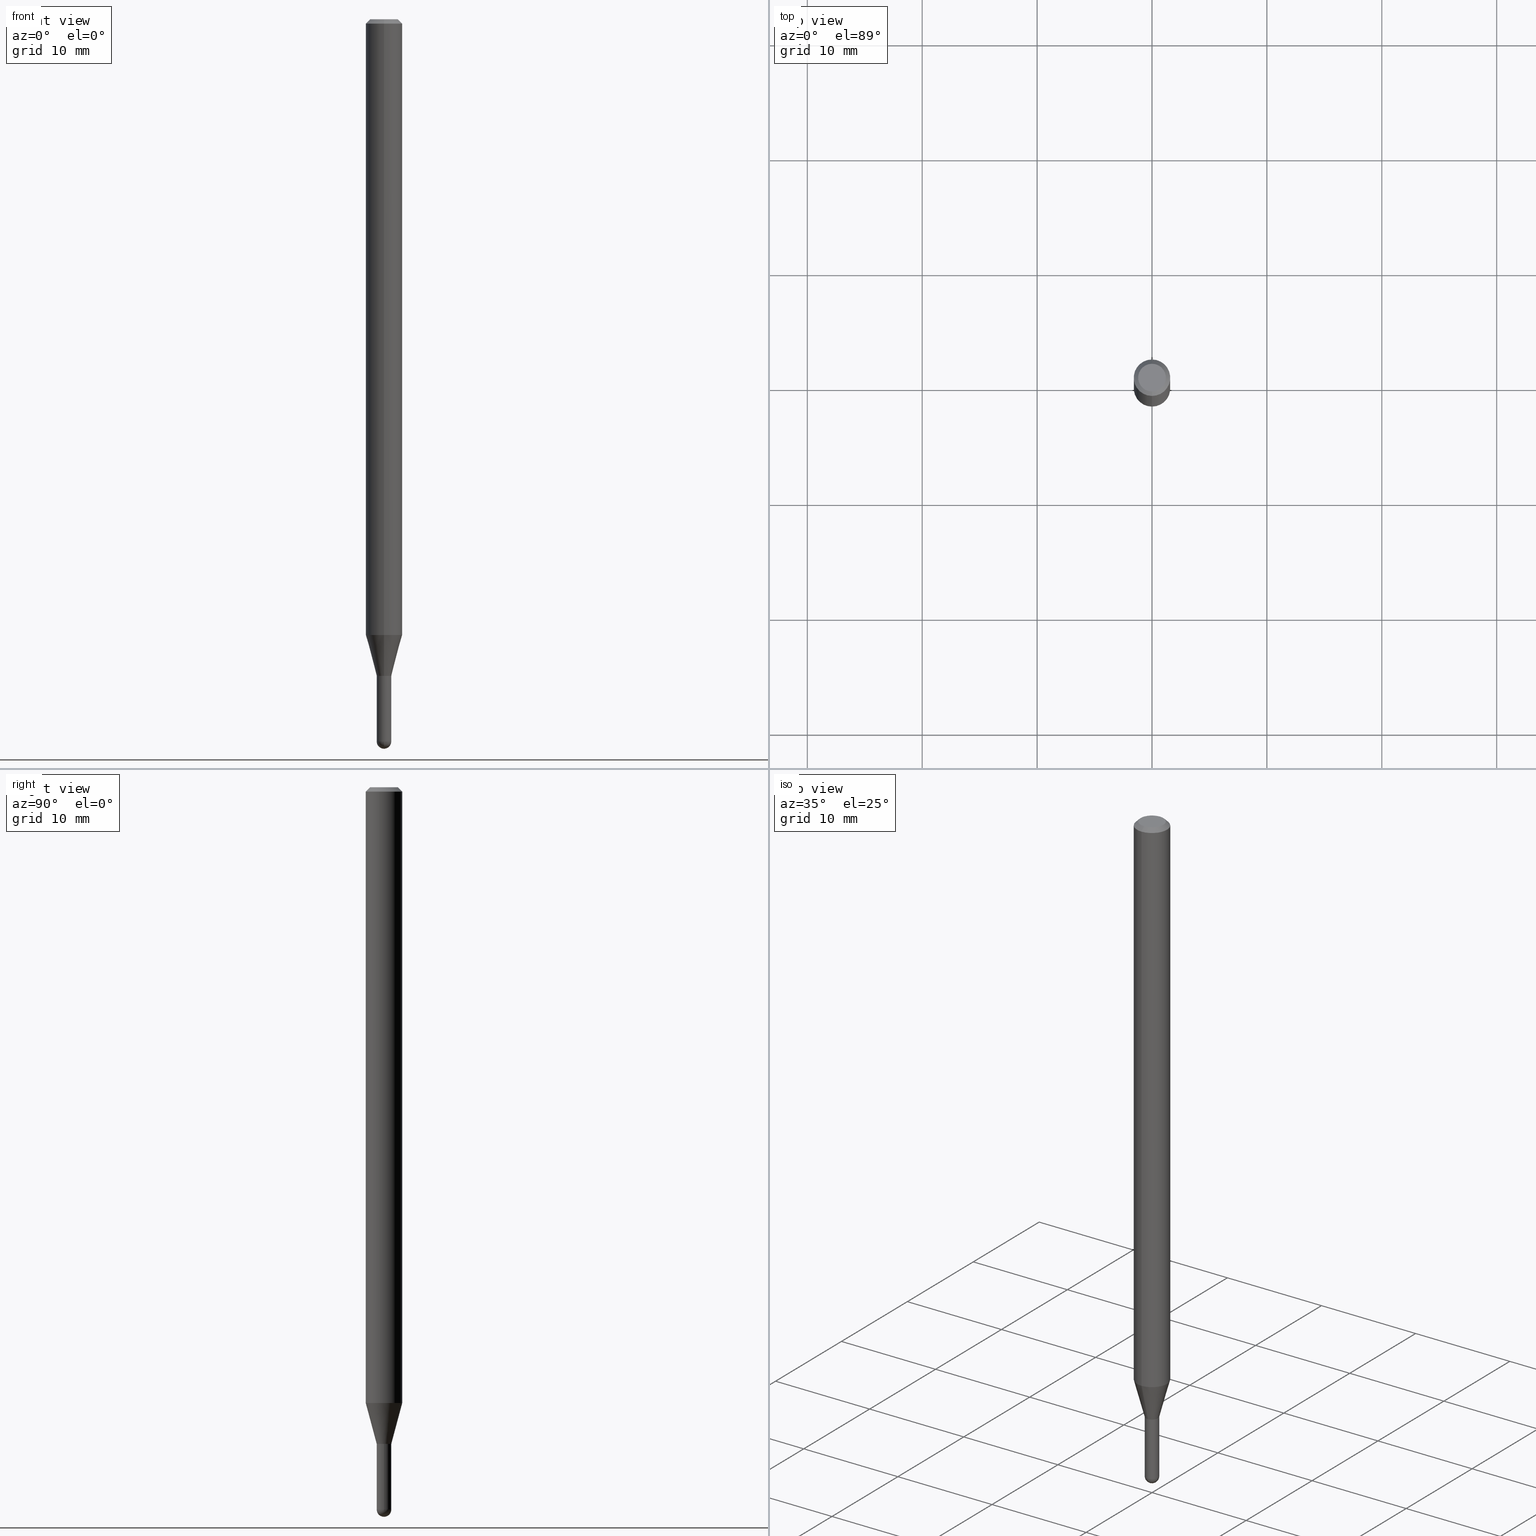
[diagram: canonical four-view strip — front | top / right | iso, engineering-drawing reading convention]
A machine part, canonical four-view strip (front | top / right | iso — engineering-drawing reading convention). The complete STEP part file that produces these views, byte-faithful:
ISO-10303-21;
HEADER;
FILE_DESCRIPTION (( 'STEP AP203' ),
    '1' );
FILE_NAME ('04464.STEP',
    '2024-03-08T19:47:28',
    ( '' ),
    ( '' ),
    'SwSTEP 2.0',
    'SolidWorks 2023',
    '' );
FILE_SCHEMA (( 'CONFIG_CONTROL_DESIGN' ));
ENDSEC;

DATA;
#1 = VECTOR ( 'NONE', #400, 39.37007874015748143 ) ;
#2 = CALENDAR_DATE ( 2024, 8, 3 ) ;
#3 = DIRECTION ( 'NONE',  ( -6.982962677686265922E-15, -1.000000000000000000, 3.491528062561427920E-15 ) ) ;
#4 = MECHANICAL_CONTEXT ( 'NONE', #263, 'mechanical' ) ;
#5 = CARTESIAN_POINT ( 'NONE',  ( -1.745740669421030499E-16, -0.02500000000000805744, -2.250000000000000000 ) ) ;
#6 = ADVANCED_FACE ( 'NONE', ( #460 ), #337, .T. ) ;
#7 = DATE_TIME_ROLE ( 'classification_date' ) ;
#8 = PLANE ( 'NONE',  #132 ) ;
#9 = CARTESIAN_POINT ( 'NONE',  ( -3.773273898774340269E-16, -0.04749999999999999362, 1.003495682958900233E-16 ) ) ;
#10 = EDGE_CURVE ( 'NONE', #466, #347, #117, .T. ) ;
#11 = DIRECTION ( 'NONE',  ( -1.000000000000000000, 7.105427357601001070E-15, -4.926315508542082329E-29 ) ) ;
#12 = AXIS2_PLACEMENT_3D ( 'NONE', #264, #455, #28 ) ;
#13 = AXIS2_PLACEMENT_3D ( 'NONE', #96, #486, #91 ) ;
#14 = ORIENTED_EDGE ( 'NONE', *, *, #369, .T. ) ;
#15 = CARTESIAN_POINT ( 'NONE',  ( 3.668154268780582042E-31, -5.237292093842164733E-17, -0.01500000000000006710 ) ) ;
#16 = ORIENTED_EDGE ( 'NONE', *, *, #459, .F. ) ;
#17 = PRODUCT ( '04464', '04464', '', ( #4 ) ) ;
#18 = DIRECTION ( 'NONE',  ( -2.445436179187043706E-29, 3.491528062561427920E-15, 1.000000000000000000 ) ) ;
#19 = CIRCLE ( 'NONE', #86, 0.02500000000000020262 ) ;
#20 = VERTEX_POINT ( 'NONE', #379 ) ;
#21 = DIRECTION ( 'NONE',  ( 1.000000000000000000, -6.982962677686254878E-15, 0.000000000000000000 ) ) ;
#22 = EDGE_LOOP ( 'NONE', ( #290, #168 ) ) ;
#23 = ADVANCED_FACE ( 'NONE', ( #376 ), #70, .F. ) ;
#24 = VECTOR ( 'NONE', #344, 39.37007874015748143 ) ;
#25 = LINE ( 'NONE', #98, #390 ) ;
#26 = CARTESIAN_POINT ( 'NONE',  ( 0.000000000000000000, 0.000000000000000000, 0.000000000000000000 ) ) ;
#27 = ADVANCED_FACE ( 'NONE', ( #218 ), #340, .F. ) ;
#28 = DIRECTION ( 'NONE',  ( -6.982962677686265922E-15, -1.000000000000000000, 0.000000000000000000 ) ) ;
#29 = ORIENTED_EDGE ( 'NONE', *, *, #353, .F. ) ;
#30 = CIRCLE ( 'NONE', #483, 0.02500000000000000486 ) ;
#31 = CARTESIAN_POINT ( 'NONE',  ( 4.440892098501139907E-16, 0.06249999999999261702, -2.110048094716172606 ) ) ;
#32 = ORIENTED_EDGE ( 'NONE', *, *, #201, .F. ) ;
#33 = DIRECTION ( 'NONE',  ( -2.445436179187043706E-29, 3.491528062561427920E-15, 1.000000000000000000 ) ) ;
#34 = DIRECTION ( 'NONE',  ( -2.445436179187043706E-29, 3.491528062561427920E-15, 1.000000000000000000 ) ) ;
#35 = DIRECTION ( 'NONE',  ( -2.445468806185136877E-29, 3.491481338843145188E-15, 1.000000000000000000 ) ) ;
#36 = CC_DESIGN_DATE_AND_TIME_ASSIGNMENT ( #389, #7, ( #121 ) ) ;
#37 = ORIENTED_EDGE ( 'NONE', *, *, #309, .F. ) ;
#38 = CALENDAR_DATE ( 2024, 8, 3 ) ;
#39 = DIRECTION ( 'NONE',  ( 5.024295867788169675E-15, 0.7071067811865651143, 0.7071067811865299202 ) ) ;
#40 = DATE_AND_TIME ( #272, #110 ) ;
#41 = ORGANIZATION ( 'UNSPECIFIED', 'UNSPECIFIED', '' ) ;
#42 = CARTESIAN_POINT ( 'NONE',  ( 1.776356839400808436E-16, 0.02499999999999225758, -2.249500000000000277 ) ) ;
#43 = DIRECTION ( 'NONE',  ( -4.851104656540964275E-15, -0.7071067811865500152, -0.7071067811865450192 ) ) ;
#44 = COORDINATED_UNIVERSAL_TIME_OFFSET ( 5, 0, .BEHIND. ) ;
#45 = CC_DESIGN_DATE_AND_TIME_ASSIGNMENT ( #158, #356, ( #221 ) ) ;
#46 = CARTESIAN_POINT ( 'NONE',  ( -1.745740669421030499E-16, -0.02500000000000805744, -2.250000000000000000 ) ) ;
#47 = SECURITY_CLASSIFICATION_LEVEL ( 'unclassified' ) ;
#48 = LINE ( 'NONE', #233, #398 ) ;
#49 = LOCAL_TIME ( 14, 47, 28.00000000000000000, #237 ) ;
#50 = DIRECTION ( 'NONE',  ( 6.982962677686265922E-15, 1.000000000000000000, -3.483106191921935554E-15 ) ) ;
#51 = CC_DESIGN_PERSON_AND_ORGANIZATION_ASSIGNMENT ( #318, #114, ( #221 ) ) ;
#52 = AXIS2_PLACEMENT_3D ( 'NONE', #412, #57, #241 ) ;
#53 = DIRECTION ( 'NONE',  ( 2.445436179187043706E-29, -3.491528062561427920E-15, -1.000000000000000000 ) ) ;
#54 = CIRCLE ( 'NONE', #262, 0.02499999999999993894 ) ;
#55 = ORIENTED_EDGE ( 'NONE', *, *, #216, .T. ) ;
#56 = FACE_OUTER_BOUND ( 'NONE', #171, .T. ) ;
#57 = DIRECTION ( 'NONE',  ( -2.445468806185136597E-29, 3.491481338843145583E-15, 1.000000000000000000 ) ) ;
#58 = ORIENTED_EDGE ( 'NONE', *, *, #467, .F. ) ;
#59 = CARTESIAN_POINT ( 'NONE',  ( 1.745740669422116662E-16, 0.02499999999999214656, -2.250000000000000000 ) ) ;
#60 = EDGE_CURVE ( 'NONE', #413, #188, #449, .T. ) ;
#61 = EDGE_LOOP ( 'NONE', ( #247, #225, #180, #131 ) ) ;
#62 = DIRECTION ( 'NONE',  ( -6.982962677686265922E-15, -1.000000000000000000, 3.483106191921935554E-15 ) ) ;
#63 = VERTEX_POINT ( 'NONE', #67 ) ;
#64 = DIRECTION ( 'NONE',  ( -2.445436179187043706E-29, 3.491528062561427920E-15, 1.000000000000000000 ) ) ;
#65 = DIRECTION ( 'NONE',  ( -2.445436179187043706E-29, 3.491528062561427920E-15, 1.000000000000000000 ) ) ;
#66 = CARTESIAN_POINT ( 'NONE',  ( 0.02500000000000000486, -1.745740669421567171E-16, 1.219044193948984299E-30 ) ) ;
#67 = CARTESIAN_POINT ( 'NONE',  ( -1.745740669421036415E-16, -0.02500000000000813724, -2.249500000000000277 ) ) ;
#68 = AXIS2_PLACEMENT_3D ( 'NONE', #172, #93, #445 ) ;
#69 = DIRECTION ( 'NONE',  ( -2.445468806185136597E-29, 3.491481338843145583E-15, 1.000000000000000000 ) ) ;
#70 = CYLINDRICAL_SURFACE ( 'NONE', #152, 0.02500000000000020262 ) ;
#71 = LOCAL_TIME ( 14, 47, 28.00000000000000000, #358 ) ;
#72 = AXIS2_PLACEMENT_3D ( 'NONE', #360, #18, #334 ) ;
#73 = ADVANCED_FACE ( 'NONE', ( #428 ), #8, .F. ) ;
#74 = ORIENTED_EDGE ( 'NONE', *, *, #442, .T. ) ;
#75 = APPROVAL_DATE_TIME ( #435, #243 ) ;
#76 = DIRECTION ( 'NONE',  ( -6.982962677686265922E-15, -1.000000000000000000, 0.000000000000000000 ) ) ;
#77 = CONICAL_SURFACE ( 'NONE', #331, 0.02500000000000020262, 0.2617993877991574569 ) ;
#78 = PERSON_AND_ORGANIZATION_ROLE ( 'classification_officer' ) ;
#79 = CYLINDRICAL_SURFACE ( 'NONE', #271, 0.06250000000000000000 ) ;
#80 = VECTOR ( 'NONE', #64, 39.37007874015748143 ) ;
#81 = CC_DESIGN_APPROVAL ( #338, ( #221 ) ) ;
#82 = DIRECTION ( 'NONE',  ( -6.982962677686265922E-15, -1.000000000000000000, 4.370956789862821150E-15 ) ) ;
#83 = DATE_AND_TIME ( #480, #138 ) ;
#84 = DIRECTION ( 'NONE',  ( -2.445436179187043706E-29, 3.491528062561427920E-15, 1.000000000000000000 ) ) ;
#85 = AXIS2_PLACEMENT_3D ( 'NONE', #267, #430, #76 ) ;
#86 = AXIS2_PLACEMENT_3D ( 'NONE', #452, #170, #246 ) ;
#87 = CARTESIAN_POINT ( 'NONE',  ( -4.364351673553916201E-16, -0.06250000000000000000, 2.182205039100892450E-16 ) ) ;
#88 = CARTESIAN_POINT ( 'NONE',  ( -4.364351673553401962E-16, -0.06250000000000738298, -2.110048094716172162 ) ) ;
#89 = FACE_OUTER_BOUND ( 'NONE', #140, .T. ) ;
#90 = ORIENTED_EDGE ( 'NONE', *, *, #159, .F. ) ;
#91 = DIRECTION ( 'NONE',  ( 6.982962677686266711E-15, 1.000000000000000000, 0.000000000000000000 ) ) ;
#92 = ORIENTED_EDGE ( 'NONE', *, *, #482, .F. ) ;
#93 = DIRECTION ( 'NONE',  ( -1.000000000000000000, 6.982962677686266711E-15, -4.883557194083112901E-29 ) ) ;
#94 = VERTEX_POINT ( 'NONE', #42 ) ;
#95 = EDGE_CURVE ( 'NONE', #409, #293, #48, .T. ) ;
#96 = CARTESIAN_POINT ( 'NONE',  ( 6.050397379585265558E-29, -8.644477930634654356E-15, -2.475000000000000089 ) ) ;
#97 = ORIENTED_EDGE ( 'NONE', *, *, #141, .T. ) ;
#98 = CARTESIAN_POINT ( 'NONE',  ( -0.02500000000000000486, 1.776356839400250810E-16, -1.229733772563726656E-30 ) ) ;
#99 = ORIENTED_EDGE ( 'NONE', *, *, #95, .F. ) ;
#100 = DIRECTION ( 'NONE',  ( -2.445436179187043706E-29, 3.491528062561427920E-15, 1.000000000000000000 ) ) ;
#101 = CARTESIAN_POINT ( 'NONE',  ( 5.502304813916557343E-29, -7.855833012397078448E-15, -2.250000000000000000 ) ) ;
#102 = EDGE_CURVE ( 'NONE', #209, #382, #312, .T. ) ;
#103 = DIRECTION ( 'NONE',  ( -6.982962677686266711E-15, -1.000000000000000000, 3.491528062561427920E-15 ) ) ;
#104 = CARTESIAN_POINT ( 'NONE',  ( 5.501008685081254812E-29, -7.854192376731932580E-15, -2.249500000000000277 ) ) ;
#105 = ORIENTED_EDGE ( 'NONE', *, *, #309, .T. ) ;
#106 = APPLICATION_CONTEXT ( 'configuration controlled 3d designs of mechanical parts and assemblies' ) ;
#107 = CLOSED_SHELL ( 'NONE', ( #411, #256, #316, #401, #270 ) ) ;
#108 = DIMENSIONAL_EXPONENTS ( 1.000000000000000000, 0.000000000000000000, 0.000000000000000000, 0.000000000000000000, 0.000000000000000000, 0.000000000000000000, 0.000000000000000000 ) ;
#109 = ORIENTED_EDGE ( 'NONE', *, *, #120, .F. ) ;
#110 = LOCAL_TIME ( 14, 47, 28.00000000000000000, #44 ) ;
#111 = ADVANCED_FACE ( 'NONE', ( #277 ), #79, .T. ) ;
#112 = APPROVAL_DATE_TIME ( #40, #157 ) ;
#113 = ORIENTED_EDGE ( 'NONE', *, *, #135, .F. ) ;
#114 = PERSON_AND_ORGANIZATION_ROLE ( 'creator' ) ;
#115 = FACE_OUTER_BOUND ( 'NONE', #22, .T. ) ;
#116 = EDGE_CURVE ( 'NONE', #406, #472, #219, .T. ) ;
#117 = CIRCLE ( 'NONE', #228, 0.02500000000000000139 ) ;
#118 = DIRECTION ( 'NONE',  ( 1.000000000000000000, 0.000000000000000000, 0.000000000000000000 ) ) ;
#119 = CARTESIAN_POINT ( 'NONE',  ( 5.502231403170847918E-29, -7.855938140763213412E-15, -2.250000000000000000 ) ) ;
#120 = EDGE_CURVE ( 'NONE', #129, #63, #124, .T. ) ;
#121 = SECURITY_CLASSIFICATION ( '', '', #47 ) ;
#122 = DIRECTION ( 'NONE',  ( -2.445436179187043706E-29, 3.491528062561427920E-15, 1.000000000000000000 ) ) ;
#123 = CARTESIAN_POINT ( 'NONE',  ( 0.000000000000000000, 0.000000000000000000, 0.000000000000000000 ) ) ;
#124 = LINE ( 'NONE', #359, #1 ) ;
#125 = CIRCLE ( 'NONE', #211, 0.02500000000000000139 ) ;
#126 = DIRECTION ( 'NONE',  ( -2.445436179187043706E-29, 3.491528062561427920E-15, 1.000000000000000000 ) ) ;
#127 = CONICAL_SURFACE ( 'NONE', #317, 0.02450000000000000441, 0.7853981633974697063 ) ;
#128 = CYLINDRICAL_SURFACE ( 'NONE', #232, 0.02500000000000000486 ) ;
#129 = VERTEX_POINT ( 'NONE', #46 ) ;
#130 = CARTESIAN_POINT ( 'NONE',  ( 5.502304813916557343E-29, -7.855833012397078448E-15, -2.250000000000000000 ) ) ;
#131 = ORIENTED_EDGE ( 'NONE', *, *, #403, .F. ) ;
#132 = AXIS2_PLACEMENT_3D ( 'NONE', #163, #481, #315 ) ;
#133 = CARTESIAN_POINT ( 'NONE',  ( 0.000000000000000000, 0.000000000000000000, 0.000000000000000000 ) ) ;
#134 = ORIENTED_EDGE ( 'NONE', *, *, #141, .F. ) ;
#135 = EDGE_CURVE ( 'NONE', #129, #384, #489, .T. ) ;
#136 = CYLINDRICAL_SURFACE ( 'NONE', #468, 0.02500000000000000486 ) ;
#137 = ORIENTED_EDGE ( 'NONE', *, *, #369, .F. ) ;
#138 = LOCAL_TIME ( 14, 47, 28.00000000000000000, #429 ) ;
#139 = DIRECTION ( 'NONE',  ( 1.000000000000000000, -6.982962677686253300E-15, 0.000000000000000000 ) ) ;
#140 = EDGE_LOOP ( 'NONE', ( #99, #296, #178, #506 ) ) ;
#141 = EDGE_CURVE ( 'NONE', #174, #308, #423, .T. ) ;
#142 = DIRECTION ( 'NONE',  ( 1.000000000000000000, -6.982962677686265922E-15, 4.883557194083112340E-29 ) ) ;
#143 = AXIS2_PLACEMENT_3D ( 'NONE', #59, #329, #285 ) ;
#144 = EDGE_LOOP ( 'NONE', ( #215, #416 ) ) ;
#145 = CARTESIAN_POINT ( 'NONE',  ( 1.601712147530709423E-45, -2.286881562825383861E-31, -6.549801467577779008E-17 ) ) ;
#146 = CARTESIAN_POINT ( 'NONE',  ( 0.000000000000000000, 0.000000000000000000, 0.000000000000000000 ) ) ;
#147 = CIRCLE ( 'NONE', #436, 0.02500000000000019915 ) ;
#148 = DIRECTION ( 'NONE',  ( -2.445436179187043706E-29, 3.491528062561427920E-15, 1.000000000000000000 ) ) ;
#149 = ORIENTED_EDGE ( 'NONE', *, *, #479, .T. ) ;
#150 = LENGTH_MEASURE_WITH_UNIT ( LENGTH_MEASURE( 0.02539999999999999897 ), #214 );
#151 = EDGE_LOOP ( 'NONE', ( #16, #14, #176, #261 ) ) ;
#152 = AXIS2_PLACEMENT_3D ( 'NONE', #26, #65, #223 ) ;
#153 = APPLICATION_PROTOCOL_DEFINITION ( 'international standard', 'config_control_design', 1994, #263 ) ;
#154 = ORIENTED_EDGE ( 'NONE', *, *, #10, .F. ) ;
#155 =( GEOMETRIC_REPRESENTATION_CONTEXT ( 3 ) GLOBAL_UNCERTAINTY_ASSIGNED_CONTEXT ( ( #291 ) ) GLOBAL_UNIT_ASSIGNED_CONTEXT ( ( #346, #302, #222 ) ) REPRESENTATION_CONTEXT ( 'NONE', 'WORKASPACE' ) );
#156 = CARTESIAN_POINT ( 'NONE',  ( -1.776356839399643140E-16, -0.02500000000000861256, -2.475000000000000089 ) ) ;
#157 = APPROVAL ( #386, 'UNSPECIFIED' ) ;
#158 = DATE_AND_TIME ( #38, #49 ) ;
#159 = EDGE_CURVE ( 'NONE', #129, #406, #164, .T. ) ;
#160 = DIRECTION ( 'NONE',  ( 1.000000000000000000, -6.982962677686253300E-15, 0.000000000000000000 ) ) ;
#161 = FACE_OUTER_BOUND ( 'NONE', #151, .T. ) ;
#162 = APPROVAL_ROLE ( '' ) ;
#163 = CARTESIAN_POINT ( 'NONE',  ( 3.316907271900976096E-16, 0.04749999999999999362, -1.985965903095567208E-16 ) ) ;
#164 = LINE ( 'NONE', #5, #457 ) ;
#165 = MANIFOLD_SOLID_BREP ( 'Body-Move/Copy2[2]', #321 ) ;
#166 = AXIS2_PLACEMENT_3D ( 'NONE', #357, #194, #82 ) ;
#167 = FACE_OUTER_BOUND ( 'NONE', #490, .T. ) ;
#168 = ORIENTED_EDGE ( 'NONE', *, *, #60, .F. ) ;
#169 = PRODUCT_DEFINITION_FORMATION_WITH_SPECIFIED_SOURCE ( 'ANY', '', #17, .NOT_KNOWN. ) ;
#170 = DIRECTION ( 'NONE',  ( -2.445436179187043706E-29, 3.491528062561427920E-15, 1.000000000000000000 ) ) ;
#171 = EDGE_LOOP ( 'NONE', ( #469, #186, #286, #364 ) ) ;
#172 = CARTESIAN_POINT ( 'NONE',  ( 6.050397379585265558E-29, -8.644477930634654356E-15, -2.475000000000000089 ) ) ;
#173 = EDGE_CURVE ( 'NONE', #20, #453, #30, .T. ) ;
#174 = VERTEX_POINT ( 'NONE', #156 ) ;
#175 = FACE_OUTER_BOUND ( 'NONE', #220, .T. ) ;
#176 = ORIENTED_EDGE ( 'NONE', *, *, #362, .F. ) ;
#177 = CARTESIAN_POINT ( 'NONE',  ( 0.02500000000000000486, -8.423198729959088407E-15, -2.475000000000000089 ) ) ;
#178 = ORIENTED_EDGE ( 'NONE', *, *, #102, .T. ) ;
#179 = DIRECTION ( 'NONE',  ( -2.445468806185136877E-29, 3.491481338843145188E-15, 1.000000000000000000 ) ) ;
#180 = ORIENTED_EDGE ( 'NONE', *, *, #201, .T. ) ;
#181 = DIRECTION ( 'NONE',  ( -6.982962677686265922E-15, -1.000000000000000000, 0.000000000000000000 ) ) ;
#182 = AXIS2_PLACEMENT_3D ( 'NONE', #422, #34, #345 ) ;
#183 = ORIENTED_EDGE ( 'NONE', *, *, #442, .F. ) ;
#184 = CARTESIAN_POINT ( 'NONE',  ( -1.710825856032585390E-16, -0.02450000000000785924, -2.250000000000000444 ) ) ;
#185 = EDGE_CURVE ( 'NONE', #209, #409, #260, .T. ) ;
#186 = ORIENTED_EDGE ( 'NONE', *, *, #95, .T. ) ;
#187 = DIRECTION ( 'NONE',  ( -6.982962677686265922E-15, -1.000000000000000000, 0.000000000000000000 ) ) ;
#188 = VERTEX_POINT ( 'NONE', #351 ) ;
#189 = ORIENTED_EDGE ( 'NONE', *, *, #479, .F. ) ;
#190 = DIRECTION ( 'NONE',  ( -6.982962677686266711E-15, -1.000000000000000000, 3.491528062561428315E-15 ) ) ;
#191 = CIRCLE ( 'NONE', #254, 0.06250000000000000000 ) ;
#192 = ADVANCED_FACE ( 'NONE', ( #195 ), #77, .T. ) ;
#193 = SHAPE_DEFINITION_REPRESENTATION ( #288, #388 ) ;
#194 = DIRECTION ( 'NONE',  ( -2.445436179187043706E-29, 3.491528062561427920E-15, 1.000000000000000000 ) ) ;
#195 = FACE_OUTER_BOUND ( 'NONE', #508, .T. ) ;
#196 = PERSON_AND_ORGANIZATION ( #396, #41 ) ;
#197 = CARTESIAN_POINT ( 'NONE',  ( 0.000000000000000000, 0.000000000000000000, 0.000000000000000000 ) ) ;
#198 = PERSON_AND_ORGANIZATION ( #396, #41 ) ;
#199 = CIRCLE ( 'NONE', #502, 0.02499999999999993894 ) ;
#200 = CARTESIAN_POINT ( 'NONE',  ( 4.364351673553919652E-16, 0.06249999999999995143, -0.01500000000000028394 ) ) ;
#201 = EDGE_CURVE ( 'NONE', #406, #293, #354, .T. ) ;
#202 = PLANE ( 'NONE',  #143 ) ;
#203 = AXIS2_PLACEMENT_3D ( 'NONE', #494, #488, #326 ) ;
#204 = FACE_OUTER_BOUND ( 'NONE', #367, .T. ) ;
#205 = ORIENTED_EDGE ( 'NONE', *, *, #216, .F. ) ;
#206 = ADVANCED_FACE ( 'NONE', ( #477 ), #304, .T. ) ;
#207 = CONICAL_SURFACE ( 'NONE', #324, 0.06250000000000000000, 0.7853981633974483900 ) ;
#208 = DIRECTION ( 'NONE',  ( 1.000000000000000000, -6.982962677686267499E-15, 4.876176775795936353E-29 ) ) ;
#209 = VERTEX_POINT ( 'NONE', #387 ) ;
#210 = CARTESIAN_POINT ( 'NONE',  ( 6.050397379585265558E-29, -8.644477930634654356E-15, -2.475000000000000089 ) ) ;
#211 = AXIS2_PLACEMENT_3D ( 'NONE', #130, #248, #21 ) ;
#212 = CARTESIAN_POINT ( 'NONE',  ( 5.159987950643618711E-29, -7.367292136055791182E-15, -2.110048094716172606 ) ) ;
#213 = ORIENTED_EDGE ( 'NONE', *, *, #426, .T. ) ;
#214 =( LENGTH_UNIT ( ) NAMED_UNIT ( * ) SI_UNIT ( $, .METRE. ) );
#215 = ORIENTED_EDGE ( 'NONE', *, *, #306, .T. ) ;
#216 = EDGE_CURVE ( 'NONE', #413, #94, #437, .T. ) ;
#217 = CARTESIAN_POINT ( 'NONE',  ( -0.02500000000000000486, -8.070988979076907324E-15, -2.475000000000000089 ) ) ;
#218 = FACE_OUTER_BOUND ( 'NONE', #501, .T. ) ;
#219 = CIRCLE ( 'NONE', #166, 0.06250000000000000000 ) ;
#220 = EDGE_LOOP ( 'NONE', ( #137, #454, #495, #134 ) ) ;
#221 = PRODUCT_DEFINITION ( 'UNKNOWN', '', #169, #355 ) ;
#222 =( NAMED_UNIT ( * ) SI_UNIT ( $, .STERADIAN. ) SOLID_ANGLE_UNIT ( ) );
#223 = DIRECTION ( 'NONE',  ( -6.982962677686266711E-15, -1.000000000000000000, 3.491528062561427920E-15 ) ) ;
#224 = CARTESIAN_POINT ( 'NONE',  ( 1.758593271006805176E-16, 0.02449999999999214959, -2.250000000000000444 ) ) ;
#225 = ORIENTED_EDGE ( 'NONE', *, *, #350, .T. ) ;
#226 = PERSON_AND_ORGANIZATION ( #396, #41 ) ;
#227 = DIRECTION ( 'NONE',  ( -6.982962677686266711E-15, -1.000000000000000000, 0.000000000000000000 ) ) ;
#228 = AXIS2_PLACEMENT_3D ( 'NONE', #101, #425, #258 ) ;
#229 = CC_DESIGN_PERSON_AND_ORGANIZATION_ASSIGNMENT ( #196, #234, ( #17 ) ) ;
#230 = PERSON_AND_ORGANIZATION ( #396, #41 ) ;
#231 = DIRECTION ( 'NONE',  ( -2.445436179187043426E-29, 3.491528062561427920E-15, 1.000000000000000000 ) ) ;
#232 = AXIS2_PLACEMENT_3D ( 'NONE', #257, #69, #253 ) ;
#233 = CARTESIAN_POINT ( 'NONE',  ( -4.287811248607203282E-16, -0.06250000000000005551, -0.01499999999999984852 ) ) ;
#234 = PERSON_AND_ORGANIZATION_ROLE ( 'design_owner' ) ;
#235 = FACE_OUTER_BOUND ( 'NONE', #265, .T. ) ;
#236 = CONICAL_SURFACE ( 'NONE', #361, 0.06250000000000000000, 0.7853981633974483900 ) ;
#237 = COORDINATED_UNIVERSAL_TIME_OFFSET ( 5, 0, .BEHIND. ) ;
#238 = DIRECTION ( 'NONE',  ( 4.937700262164548042E-15, 0.7071067811865451302, -0.7071067811865499042 ) ) ;
#239 = LOCAL_TIME ( 14, 47, 28.00000000000000000, #393 ) ;
#240 = CARTESIAN_POINT ( 'NONE',  ( 3.668154268780582042E-31, -5.237292093842164733E-17, -0.01500000000000006710 ) ) ;
#241 = DIRECTION ( 'NONE',  ( 1.000000000000000000, -6.982962677686253300E-15, 0.000000000000000000 ) ) ;
#242 = ORIENTED_EDGE ( 'NONE', *, *, #116, .T. ) ;
#243 = APPROVAL ( #268, 'UNSPECIFIED' ) ;
#244 = DIRECTION ( 'NONE',  ( -6.982962677686265922E-15, -1.000000000000000000, 3.483106191921935554E-15 ) ) ;
#245 = ORIENTED_EDGE ( 'NONE', *, *, #362, .T. ) ;
#246 = DIRECTION ( 'NONE',  ( -6.982962677686266711E-15, -1.000000000000000000, 0.000000000000000000 ) ) ;
#247 = ORIENTED_EDGE ( 'NONE', *, *, #434, .F. ) ;
#248 = DIRECTION ( 'NONE',  ( -2.445468806185136597E-29, 3.491481338843145583E-15, 1.000000000000000000 ) ) ;
#249 = ORIENTED_EDGE ( 'NONE', *, *, #385, .T. ) ;
#250 = AXIS2_PLACEMENT_3D ( 'NONE', #478, #273, #227 ) ;
#251 = ADVANCED_FACE ( 'NONE', ( #115 ), #433, .F. ) ;
#252 = EDGE_LOOP ( 'NONE', ( #300, #55, #29, #183 ) ) ;
#253 = DIRECTION ( 'NONE',  ( 1.000000000000000000, -6.982962677686267499E-15, 4.876176775795936353E-29 ) ) ;
#254 = AXIS2_PLACEMENT_3D ( 'NONE', #427, #148, #62 ) ;
#255 = ORIENTED_EDGE ( 'NONE', *, *, #447, .F. ) ;
#256 = ADVANCED_FACE ( 'NONE', ( #161 ), #397, .T. ) ;
#257 = CARTESIAN_POINT ( 'NONE',  ( 0.000000000000000000, 0.000000000000000000, 0.000000000000000000 ) ) ;
#258 = DIRECTION ( 'NONE',  ( 1.000000000000000000, -6.982962677686254878E-15, 0.000000000000000000 ) ) ;
#259 = LINE ( 'NONE', #295, #24 ) ;
#260 = CIRCLE ( 'NONE', #294, 0.04749999999999999362 ) ;
#261 = ORIENTED_EDGE ( 'NONE', *, *, #173, .F. ) ;
#262 = AXIS2_PLACEMENT_3D ( 'NONE', #210, #11, #289 ) ;
#263 = APPLICATION_CONTEXT ( 'configuration controlled 3d designs of mechanical parts and assemblies' ) ;
#264 = CARTESIAN_POINT ( 'NONE',  ( 5.502231403170849039E-29, -7.855938140763214990E-15, -2.250000000000000444 ) ) ;
#265 = EDGE_LOOP ( 'NONE', ( #370, #245, #97, #149, #154 ) ) ;
#266 = CC_DESIGN_APPROVAL ( #157, ( #121 ) ) ;
#267 = CARTESIAN_POINT ( 'NONE',  ( 5.502231403170849039E-29, -7.855938140763214990E-15, -2.250000000000000444 ) ) ;
#268 = APPROVAL_STATUS ( 'not_yet_approved' ) ;
#269 = DIRECTION ( 'NONE',  ( -2.445468806185136597E-29, 3.491481338843145583E-15, 1.000000000000000000 ) ) ;
#270 = ADVANCED_FACE ( 'NONE', ( #235 ), #136, .T. ) ;
#271 = AXIS2_PLACEMENT_3D ( 'NONE', #197, #84, #348 ) ;
#272 = CALENDAR_DATE ( 2024, 8, 3 ) ;
#273 = DIRECTION ( 'NONE',  ( -2.445436179187043706E-29, 3.491528062561427920E-15, 1.000000000000000000 ) ) ;
#274 = VECTOR ( 'NONE', #339, 39.37007874015748143 ) ;
#275 = CARTESIAN_POINT ( 'NONE',  ( 5.502231403170849039E-29, -7.855938140763214990E-15, -2.250000000000000444 ) ) ;
#276 = DIRECTION ( 'NONE',  ( 0.000000000000000000, 0.000000000000000000, 1.000000000000000000 ) ) ;
#277 = FACE_OUTER_BOUND ( 'NONE', #61, .T. ) ;
#278 = CIRCLE ( 'NONE', #52, 0.02500000000000000486 ) ;
#279 = CARTESIAN_POINT ( 'NONE',  ( 6.052535295308213750E-29, -8.641416313636786609E-15, -2.475000000000000089 ) ) ;
#280 = DIRECTION ( 'NONE',  ( -2.445468806185136597E-29, 3.491481338843145583E-15, 1.000000000000000000 ) ) ;
#281 = ORIENTED_EDGE ( 'NONE', *, *, #434, .T. ) ;
#282 = CYLINDRICAL_SURFACE ( 'NONE', #72, 0.06250000000000000000 ) ;
#283 = ORIENTED_EDGE ( 'NONE', *, *, #451, .F. ) ;
#284 = AXIS2_PLACEMENT_3D ( 'NONE', #279, #394, #511 ) ;
#285 = DIRECTION ( 'NONE',  ( -1.000000000000000000, 6.982962677686265922E-15, -4.876176775795935793E-29 ) ) ;
#286 = ORIENTED_EDGE ( 'NONE', *, *, #467, .T. ) ;
#287 = AXIS2_PLACEMENT_3D ( 'NONE', #491, #373, #244 ) ;
#288 = PRODUCT_DEFINITION_SHAPE ( 'NONE', 'NONE',  #221 ) ;
#289 = DIRECTION ( 'NONE',  ( -7.105427357601001070E-15, -1.000000000000000000, 0.000000000000000000 ) ) ;
#290 = ORIENTED_EDGE ( 'NONE', *, *, #417, .F. ) ;
#291 = UNCERTAINTY_MEASURE_WITH_UNIT (LENGTH_MEASURE( 1.000000000000000082E-05 ), #346, 'distance_accuracy_value', 'NONE');
#292 = CARTESIAN_POINT ( 'NONE',  ( 6.052535295308213750E-29, -8.641416313636786609E-15, -2.475000000000000089 ) ) ;
#293 = VERTEX_POINT ( 'NONE', #322 ) ;
#294 = AXIS2_PLACEMENT_3D ( 'NONE', #484, #126, #190 ) ;
#295 = CARTESIAN_POINT ( 'NONE',  ( 1.776356839400264615E-16, 0.02500000000000020262, -8.728820156403640552E-17 ) ) ;
#296 = ORIENTED_EDGE ( 'NONE', *, *, #185, .F. ) ;
#297 = CIRCLE ( 'NONE', #470, 0.02500000000000000486 ) ;
#298 = CARTESIAN_POINT ( 'NONE',  ( 5.502231403170849039E-29, -7.855938140763214990E-15, -2.250000000000000444 ) ) ;
#299 = CIRCLE ( 'NONE', #12, 0.02450000000000000441 ) ;
#300 = ORIENTED_EDGE ( 'NONE', *, *, #417, .T. ) ;
#301 = ADVANCED_FACE ( 'NONE', ( #89 ), #236, .T. ) ;
#302 =( NAMED_UNIT ( * ) PLANE_ANGLE_UNIT ( ) SI_UNIT ( $, .RADIAN. ) );
#303 = EDGE_LOOP ( 'NONE', ( #420, #323 ) ) ;
#304 = CONICAL_SURFACE ( 'NONE', #250, 0.02500000000000020262, 0.2617993877991574569 ) ;
#305 = ORIENTED_EDGE ( 'NONE', *, *, #451, .T. ) ;
#306 = EDGE_CURVE ( 'NONE', #347, #466, #125, .T. ) ;
#307 = PERSON_AND_ORGANIZATION ( #396, #41 ) ;
#308 = VERTEX_POINT ( 'NONE', #177 ) ;
#309 = EDGE_CURVE ( 'NONE', #384, #129, #19, .T. ) ;
#310 = CARTESIAN_POINT ( 'NONE',  ( 1.740829702612795753E-16, 0.02449999999999214959, -2.250000000000000444 ) ) ;
#311 = PERSON_AND_ORGANIZATION ( #396, #41 ) ;
#312 = LINE ( 'NONE', #200, #371 ) ;
#313 = VECTOR ( 'NONE', #122, 39.37007874015748143 ) ;
#314 = APPROVAL_ROLE ( '' ) ;
#315 = DIRECTION ( 'NONE',  ( 6.982962677686265922E-15, 1.000000000000000000, -3.491528062561427920E-15 ) ) ;
#316 = ADVANCED_FACE ( 'NONE', ( #414 ), #202, .F. ) ;
#317 = AXIS2_PLACEMENT_3D ( 'NONE', #298, #424, #187 ) ;
#318 = PERSON_AND_ORGANIZATION ( #396, #41 ) ;
#319 = DIRECTION ( 'NONE',  ( -6.982962677686266711E-15, -1.000000000000000000, 0.000000000000000000 ) ) ;
#320 = DIRECTION ( 'NONE',  ( -1.807323732225378654E-15, -0.2588190451025251249, 0.9659258262890670910 ) ) ;
#321 = CLOSED_SHELL ( 'NONE', ( #23, #496, #407, #392, #192, #206, #111, #301, #73, #251, #6, #27 ) ) ;
#322 = CARTESIAN_POINT ( 'NONE',  ( -4.364351673553912750E-16, -0.06250000000000005551, -0.01499999999999984852 ) ) ;
#323 = ORIENTED_EDGE ( 'NONE', *, *, #493, .T. ) ;
#324 = AXIS2_PLACEMENT_3D ( 'NONE', #240, #402, #485 ) ;
#325 = CC_DESIGN_SECURITY_CLASSIFICATION ( #121, ( #169 ) ) ;
#326 = DIRECTION ( 'NONE',  ( -6.982962677686265922E-15, -1.000000000000000000, 0.000000000000000000 ) ) ;
#327 = ORIENTED_EDGE ( 'NONE', *, *, #306, .F. ) ;
#328 = MANIFOLD_SOLID_BREP ( 'Body-Move/Copy2[1]', #107 ) ;
#329 = DIRECTION ( 'NONE',  ( 2.438088387897960049E-29, -3.491481338843145188E-15, -1.000000000000000000 ) ) ;
#330 = ORIENTED_EDGE ( 'NONE', *, *, #60, .T. ) ;
#331 = AXIS2_PLACEMENT_3D ( 'NONE', #391, #443, #475 ) ;
#332 = SPHERICAL_SURFACE ( 'NONE', #13, 0.02499999999999993894 ) ;
#333 = ORIENTED_EDGE ( 'NONE', *, *, #159, .T. ) ;
#334 = DIRECTION ( 'NONE',  ( -6.982962677686265922E-15, -1.000000000000000000, 3.491528062561427920E-15 ) ) ;
#335 = DIRECTION ( 'NONE',  ( -4.937700262164653750E-15, -0.7071067811865602293, 0.7071067811865348052 ) ) ;
#336 = ORIENTED_EDGE ( 'NONE', *, *, #353, .T. ) ;
#337 = CONICAL_SURFACE ( 'NONE', #85, 0.02450000000000000441, 0.7853981633974697063 ) ;
#338 = APPROVAL ( #473, 'UNSPECIFIED' ) ;
#339 = DIRECTION ( 'NONE',  ( 1.839019923739649619E-15, 0.2588190451025318972, 0.9659258262890653146 ) ) ;
#340 = CYLINDRICAL_SURFACE ( 'NONE', #405, 0.02500000000000020262 ) ;
#341 = DIRECTION ( 'NONE',  ( 6.982962677686265922E-15, 1.000000000000000000, 0.000000000000000000 ) ) ;
#342 = CIRCLE ( 'NONE', #375, 0.04749999999999999362 ) ;
#343 = ORIENTED_EDGE ( 'NONE', *, *, #116, .F. ) ;
#344 = DIRECTION ( 'NONE',  ( -2.445436179187043706E-29, 3.491528062561427920E-15, 1.000000000000000000 ) ) ;
#345 = DIRECTION ( 'NONE',  ( -6.982962677686265922E-15, -1.000000000000000000, 0.000000000000000000 ) ) ;
#346 =( CONVERSION_BASED_UNIT ( 'INCH', #150 ) LENGTH_UNIT ( ) NAMED_UNIT ( #108 ) );
#347 = VERTEX_POINT ( 'NONE', #448 ) ;
#348 = DIRECTION ( 'NONE',  ( -6.982962677686265922E-15, -1.000000000000000000, 3.491528062561427920E-15 ) ) ;
#349 = VECTOR ( 'NONE', #35, 39.37007874015748143 ) ;
#350 = EDGE_CURVE ( 'NONE', #472, #406, #372, .T. ) ;
#351 = CARTESIAN_POINT ( 'NONE',  ( -1.710825856032585390E-16, -0.02450000000000785924, -2.250000000000000444 ) ) ;
#352 = PERSON_AND_ORGANIZATION_ROLE ( 'design_supplier' ) ;
#353 = EDGE_CURVE ( 'NONE', #63, #94, #507, .T. ) ;
#354 = LINE ( 'NONE', #87, #313 ) ;
#355 = DESIGN_CONTEXT ( 'detailed design', #106, 'design' ) ;
#356 = DATE_TIME_ROLE ( 'creation_date' ) ;
#357 = CARTESIAN_POINT ( 'NONE',  ( 5.159987950643618711E-29, -7.367292136055791182E-15, -2.110048094716172606 ) ) ;
#358 = COORDINATED_UNIVERSAL_TIME_OFFSET ( 5, 0, .BEHIND. ) ;
#359 = CARTESIAN_POINT ( 'NONE',  ( -1.745740669421580729E-16, -0.02500000000000020262, 8.728820156403640552E-17 ) ) ;
#360 = CARTESIAN_POINT ( 'NONE',  ( 0.000000000000000000, 0.000000000000000000, 0.000000000000000000 ) ) ;
#361 = AXIS2_PLACEMENT_3D ( 'NONE', #15, #53, #50 ) ;
#362 = EDGE_CURVE ( 'NONE', #453, #174, #278, .T. ) ;
#363 = DIRECTION ( 'NONE',  ( -6.982962677686265922E-15, -1.000000000000000000, 4.370956789862821150E-15 ) ) ;
#364 = ORIENTED_EDGE ( 'NONE', *, *, #102, .F. ) ;
#365 = VECTOR ( 'NONE', #335, 39.37007874015748143 ) ;
#366 = CARTESIAN_POINT ( 'NONE',  ( 4.440892098501145824E-16, 0.06249999999999995143, -0.01500000000000028394 ) ) ;
#367 = EDGE_LOOP ( 'NONE', ( #242, #281, #58, #32 ) ) ;
#368 = DIRECTION ( 'NONE',  ( -2.445468806185136597E-29, 3.491481338843145583E-15, 1.000000000000000000 ) ) ;
#369 = EDGE_CURVE ( 'NONE', #498, #174, #54, .T. ) ;
#370 = ORIENTED_EDGE ( 'NONE', *, *, #426, .F. ) ;
#371 = VECTOR ( 'NONE', #238, 39.37007874015748143 ) ;
#372 = CIRCLE ( 'NONE', #431, 0.06250000000000000000 ) ;
#373 = DIRECTION ( 'NONE',  ( -2.445436179187043706E-29, 3.491528062561427920E-15, 1.000000000000000000 ) ) ;
#374 = ORIENTED_EDGE ( 'NONE', *, *, #482, .T. ) ;
#375 = AXIS2_PLACEMENT_3D ( 'NONE', #145, #100, #421 ) ;
#376 = FACE_OUTER_BOUND ( 'NONE', #504, .T. ) ;
#377 = CC_DESIGN_PERSON_AND_ORGANIZATION_ASSIGNMENT ( #226, #352, ( #169 ) ) ;
#378 = CARTESIAN_POINT ( 'NONE',  ( -0.02500000000000000139, -8.070988979076907324E-15, -2.250000000000000000 ) ) ;
#379 = CARTESIAN_POINT ( 'NONE',  ( 1.745740669422169663E-16, 0.02499999999999133124, -2.475000000000000089 ) ) ;
#380 = AXIS2_PLACEMENT_3D ( 'NONE', #119, #512, #319 ) ;
#381 = ORIENTED_EDGE ( 'NONE', *, *, #173, .T. ) ;
#382 = VERTEX_POINT ( 'NONE', #366 ) ;
#383 = LINE ( 'NONE', #184, #365 ) ;
#384 = VERTEX_POINT ( 'NONE', #404 ) ;
#385 = EDGE_CURVE ( 'NONE', #308, #20, #297, .T. ) ;
#386 = APPROVAL_STATUS ( 'not_yet_approved' ) ;
#387 = CARTESIAN_POINT ( 'NONE',  ( 3.840629472727447874E-16, 0.04749999999999999362, -2.313455976474456035E-16 ) ) ;
#388 = ADVANCED_BREP_SHAPE_REPRESENTATION ( '04464', ( #328, #165, #510 ), #155 ) ;
#389 = DATE_AND_TIME ( #2, #71 ) ;
#390 = VECTOR ( 'NONE', #179, 39.37007874015748143 ) ;
#391 = CARTESIAN_POINT ( 'NONE',  ( 5.502231403170847918E-29, -7.855938140763213412E-15, -2.250000000000000000 ) ) ;
#392 = ADVANCED_FACE ( 'NONE', ( #204 ), #282, .T. ) ;
#393 = COORDINATED_UNIVERSAL_TIME_OFFSET ( 5, 0, .BEHIND. ) ;
#394 = DIRECTION ( 'NONE',  ( -2.445468806185136597E-29, 3.491481338843145583E-15, 1.000000000000000000 ) ) ;
#395 = APPLICATION_PROTOCOL_DEFINITION ( 'international standard', 'config_control_design', 1994, #106 ) ;
#396 = PERSON ( 'UNSPECIFIED', 'UNSPECIFIED', 'UNSPECIFIED', ('UNSPECIFIED'), ('UNSPECIFIED'), ('UNSPECIFIED') ) ;
#397 = SPHERICAL_SURFACE ( 'NONE', #68, 0.02499999999999993894 ) ;
#398 = VECTOR ( 'NONE', #43, 39.37007874015748143 ) ;
#399 = PERSON_AND_ORGANIZATION_ROLE ( 'creator' ) ;
#400 = DIRECTION ( 'NONE',  ( -2.445436179187043706E-29, 3.491528062561427920E-15, 1.000000000000000000 ) ) ;
#401 = ADVANCED_FACE ( 'NONE', ( #175 ), #332, .T. ) ;
#402 = DIRECTION ( 'NONE',  ( 2.445436179187043706E-29, -3.491528062561427920E-15, -1.000000000000000000 ) ) ;
#403 = EDGE_CURVE ( 'NONE', #382, #293, #509, .T. ) ;
#404 = CARTESIAN_POINT ( 'NONE',  ( 3.108624468950978979E-16, 0.02499999999999235473, -2.250000000000000000 ) ) ;
#405 = AXIS2_PLACEMENT_3D ( 'NONE', #146, #464, #103 ) ;
#406 = VERTEX_POINT ( 'NONE', #88 ) ;
#407 = ADVANCED_FACE ( 'NONE', ( #56 ), #207, .T. ) ;
#408 = DIRECTION ( 'NONE',  ( -2.445436179187043706E-29, 3.491528062561427920E-15, 1.000000000000000000 ) ) ;
#409 = VERTEX_POINT ( 'NONE', #9 ) ;
#410 = APPROVAL_PERSON_ORGANIZATION ( #307, #157, #471 ) ;
#411 = ADVANCED_FACE ( 'NONE', ( #167 ), #128, .T. ) ;
#412 = CARTESIAN_POINT ( 'NONE',  ( 6.052535295308213750E-29, -8.641416313636786609E-15, -2.475000000000000089 ) ) ;
#413 = VERTEX_POINT ( 'NONE', #224 ) ;
#414 = FACE_OUTER_BOUND ( 'NONE', #144, .T. ) ;
#415 = EDGE_LOOP ( 'NONE', ( #205, #330, #74, #255 ) ) ;
#416 = ORIENTED_EDGE ( 'NONE', *, *, #10, .T. ) ;
#417 = EDGE_CURVE ( 'NONE', #188, #413, #299, .T. ) ;
#418 = CC_DESIGN_APPROVAL ( #243, ( #169 ) ) ;
#419 = CARTESIAN_POINT ( 'NONE',  ( 4.440892098500625669E-16, 0.06250000000000000000, -2.182205039100892450E-16 ) ) ;
#420 = ORIENTED_EDGE ( 'NONE', *, *, #185, .T. ) ;
#421 = DIRECTION ( 'NONE',  ( -6.982962677686266711E-15, -1.000000000000000000, 3.491528062561428315E-15 ) ) ;
#422 = CARTESIAN_POINT ( 'NONE',  ( 5.502231403170849039E-29, -7.855938140763214990E-15, -2.250000000000000444 ) ) ;
#423 = CIRCLE ( 'NONE', #284, 0.02500000000000000486 ) ;
#424 = DIRECTION ( 'NONE',  ( -2.445436179187043706E-29, 3.491528062561427920E-15, 1.000000000000000000 ) ) ;
#425 = DIRECTION ( 'NONE',  ( -2.445468806185136597E-29, 3.491481338843145583E-15, 1.000000000000000000 ) ) ;
#426 = EDGE_CURVE ( 'NONE', #453, #466, #25, .T. ) ;
#427 = CARTESIAN_POINT ( 'NONE',  ( 3.668154268780582042E-31, -5.237292093842164733E-17, -0.01500000000000006710 ) ) ;
#428 = FACE_OUTER_BOUND ( 'NONE', #303, .T. ) ;
#429 = COORDINATED_UNIVERSAL_TIME_OFFSET ( 5, 0, .BEHIND. ) ;
#430 = DIRECTION ( 'NONE',  ( -2.445436179187043706E-29, 3.491528062561427920E-15, 1.000000000000000000 ) ) ;
#431 = AXIS2_PLACEMENT_3D ( 'NONE', #212, #408, #363 ) ;
#432 = CALENDAR_DATE ( 2024, 8, 3 ) ;
#433 = PLANE ( 'NONE',  #440 ) ;
#434 = EDGE_CURVE ( 'NONE', #472, #382, #465, .T. ) ;
#435 = DATE_AND_TIME ( #432, #239 ) ;
#436 = AXIS2_PLACEMENT_3D ( 'NONE', #104, #33, #181 ) ;
#437 = LINE ( 'NONE', #310, #499 ) ;
#438 = PRODUCT_RELATED_PRODUCT_CATEGORY ( 'detail', '', ( #17 ) ) ;
#439 = PERSON_AND_ORGANIZATION ( #396, #41 ) ;
#440 = AXIS2_PLACEMENT_3D ( 'NONE', #275, #231, #3 ) ;
#441 = CARTESIAN_POINT ( 'NONE',  ( 6.052535295308213750E-29, -8.641416313636786609E-15, -2.475000000000000089 ) ) ;
#442 = EDGE_CURVE ( 'NONE', #188, #63, #383, .T. ) ;
#443 = DIRECTION ( 'NONE',  ( -2.445436179187043706E-29, 3.491528062561427920E-15, 1.000000000000000000 ) ) ;
#444 = APPROVAL_PERSON_ORGANIZATION ( #439, #338, #162 ) ;
#445 = DIRECTION ( 'NONE',  ( 6.982962677686266711E-15, 1.000000000000000000, 0.000000000000000000 ) ) ;
#446 = ORIENTED_EDGE ( 'NONE', *, *, #447, .T. ) ;
#447 = EDGE_CURVE ( 'NONE', #94, #63, #147, .T. ) ;
#448 = CARTESIAN_POINT ( 'NONE',  ( 0.02500000000000000139, -8.030407079339233538E-15, -2.250000000000000000 ) ) ;
#449 = CIRCLE ( 'NONE', #182, 0.02450000000000000441 ) ;
#450 = EDGE_LOOP ( 'NONE', ( #283, #105, #333, #487 ) ) ;
#451 = EDGE_CURVE ( 'NONE', #384, #472, #503, .T. ) ;
#452 = CARTESIAN_POINT ( 'NONE',  ( 5.502231403170847918E-29, -7.855938140763213412E-15, -2.250000000000000000 ) ) ;
#453 = VERTEX_POINT ( 'NONE', #217 ) ;
#454 = ORIENTED_EDGE ( 'NONE', *, *, #459, .T. ) ;
#455 = DIRECTION ( 'NONE',  ( -2.445436179187043706E-29, 3.491528062561427920E-15, 1.000000000000000000 ) ) ;
#456 = ORIENTED_EDGE ( 'NONE', *, *, #120, .T. ) ;
#457 = VECTOR ( 'NONE', #320, 39.37007874015748854 ) ;
#458 = CARTESIAN_POINT ( 'NONE',  ( 6.050397379585265558E-29, -8.644477930634654356E-15, -2.475000000000000089 ) ) ;
#459 = EDGE_CURVE ( 'NONE', #498, #20, #199, .T. ) ;
#460 = FACE_OUTER_BOUND ( 'NONE', #415, .T. ) ;
#461 = APPROVAL_PERSON_ORGANIZATION ( #230, #243, #314 ) ;
#462 = CARTESIAN_POINT ( 'NONE',  ( 6.112603057601368517E-29, -8.730234155606798816E-15, -2.500000000000000000 ) ) ;
#463 = CC_DESIGN_PERSON_AND_ORGANIZATION_ASSIGNMENT ( #198, #78, ( #121 ) ) ;
#464 = DIRECTION ( 'NONE',  ( -2.445436179187043706E-29, 3.491528062561427920E-15, 1.000000000000000000 ) ) ;
#465 = LINE ( 'NONE', #419, #80 ) ;
#466 = VERTEX_POINT ( 'NONE', #378 ) ;
#467 = EDGE_CURVE ( 'NONE', #293, #382, #191, .T. ) ;
#468 = AXIS2_PLACEMENT_3D ( 'NONE', #133, #280, #208 ) ;
#469 = ORIENTED_EDGE ( 'NONE', *, *, #493, .F. ) ;
#470 = AXIS2_PLACEMENT_3D ( 'NONE', #292, #368, #139 ) ;
#471 = APPROVAL_ROLE ( '' ) ;
#472 = VERTEX_POINT ( 'NONE', #31 ) ;
#473 = APPROVAL_STATUS ( 'not_yet_approved' ) ;
#474 = CC_DESIGN_PERSON_AND_ORGANIZATION_ASSIGNMENT ( #311, #399, ( #169 ) ) ;
#475 = DIRECTION ( 'NONE',  ( -6.982962677686266711E-15, -1.000000000000000000, 0.000000000000000000 ) ) ;
#476 = APPROVAL_DATE_TIME ( #83, #338 ) ;
#477 = FACE_OUTER_BOUND ( 'NONE', #450, .T. ) ;
#478 = CARTESIAN_POINT ( 'NONE',  ( 5.502231403170847918E-29, -7.855938140763213412E-15, -2.250000000000000000 ) ) ;
#479 = EDGE_CURVE ( 'NONE', #308, #347, #500, .T. ) ;
#480 = CALENDAR_DATE ( 2024, 8, 3 ) ;
#481 = DIRECTION ( 'NONE',  ( 2.445436179187043426E-29, -3.491528062561427920E-15, -1.000000000000000000 ) ) ;
#482 = EDGE_CURVE ( 'NONE', #384, #94, #259, .T. ) ;
#483 = AXIS2_PLACEMENT_3D ( 'NONE', #441, #269, #160 ) ;
#484 = CARTESIAN_POINT ( 'NONE',  ( 1.601712147530709423E-45, -2.286881562825383861E-31, -6.549801467577779008E-17 ) ) ;
#485 = DIRECTION ( 'NONE',  ( 6.982962677686265922E-15, 1.000000000000000000, -3.483106191921935554E-15 ) ) ;
#486 = DIRECTION ( 'NONE',  ( -1.000000000000000000, 6.982962677686266711E-15, -4.883557194083112901E-29 ) ) ;
#487 = ORIENTED_EDGE ( 'NONE', *, *, #350, .F. ) ;
#488 = DIRECTION ( 'NONE',  ( -2.445436179187043706E-29, 3.491528062561427920E-15, 1.000000000000000000 ) ) ;
#489 = CIRCLE ( 'NONE', #380, 0.02500000000000020262 ) ;
#490 = EDGE_LOOP ( 'NONE', ( #381, #213, #327, #189, #249 ) ) ;
#491 = CARTESIAN_POINT ( 'NONE',  ( 3.668154268780582042E-31, -5.237292093842164733E-17, -0.01500000000000006710 ) ) ;
#492 = ORIENTED_EDGE ( 'NONE', *, *, #135, .T. ) ;
#493 = EDGE_CURVE ( 'NONE', #409, #209, #342, .T. ) ;
#494 = CARTESIAN_POINT ( 'NONE',  ( 5.501008685081254812E-29, -7.854192376731932580E-15, -2.249500000000000277 ) ) ;
#495 = ORIENTED_EDGE ( 'NONE', *, *, #385, .F. ) ;
#496 = ADVANCED_FACE ( 'NONE', ( #505 ), #127, .T. ) ;
#497 = CARTESIAN_POINT ( 'NONE',  ( 1.776356839400814845E-16, 0.02499999999999234779, -2.250000000000000000 ) ) ;
#498 = VERTEX_POINT ( 'NONE', #462 ) ;
#499 = VECTOR ( 'NONE', #39, 39.37007874015748143 ) ;
#500 = LINE ( 'NONE', #66, #349 ) ;
#501 = EDGE_LOOP ( 'NONE', ( #92, #113, #456, #336 ) ) ;
#502 = AXIS2_PLACEMENT_3D ( 'NONE', #458, #142, #341 ) ;
#503 = LINE ( 'NONE', #497, #274 ) ;
#504 = EDGE_LOOP ( 'NONE', ( #37, #374, #446, #109 ) ) ;
#505 = FACE_OUTER_BOUND ( 'NONE', #252, .T. ) ;
#506 = ORIENTED_EDGE ( 'NONE', *, *, #403, .T. ) ;
#507 = CIRCLE ( 'NONE', #203, 0.02500000000000019915 ) ;
#508 = EDGE_LOOP ( 'NONE', ( #492, #305, #343, #90 ) ) ;
#509 = CIRCLE ( 'NONE', #287, 0.06250000000000000000 ) ;
#510 = AXIS2_PLACEMENT_3D ( 'NONE', #123, #276, #118 ) ;
#511 = DIRECTION ( 'NONE',  ( 1.000000000000000000, -6.982962677686253300E-15, 0.000000000000000000 ) ) ;
#512 = DIRECTION ( 'NONE',  ( -2.445436179187043706E-29, 3.491528062561427920E-15, 1.000000000000000000 ) ) ;
ENDSEC;
END-ISO-10303-21;
